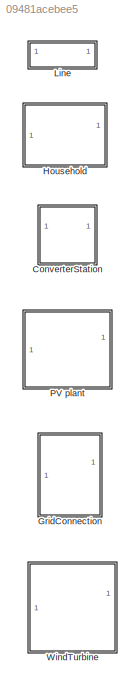
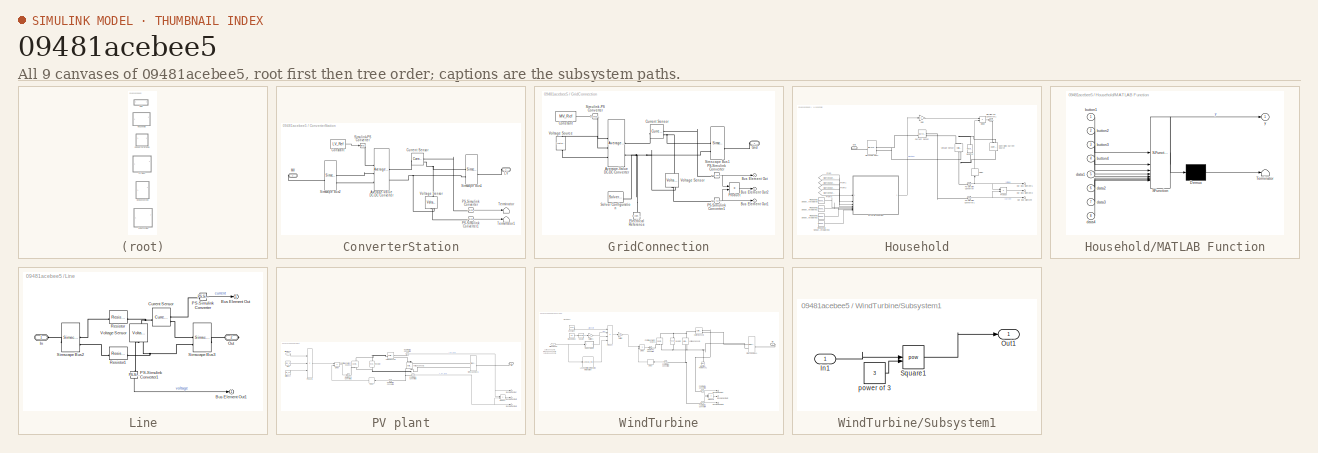
[diagram: thumbnail index - all 9 canvases of the model, root first then tree order]
MODEL slx_09481acebee5
KIND library
CONFIG AbsTol = auto
CONFIG EnableMultiTasking = off
CONFIG FixedStep = auto
CONFIG MaxStep = auto
CONFIG MinStep = auto
CONFIG RelTol = 1e-3
CONFIG SampleTimeConstraint = Unconstrained
CONFIG SolverName = VariableStepAuto
CONFIG StartTime = 0.0
CONFIG StopTime = 10.0
BLOCK [SubSystem] ConverterStation
BLOCK [Reference] ConverterStation/Average-Value DC-DC Converter  REF=ee_lib/Semiconductors &
Converters/Converters/Average-Value DC-DC
Converter
  SourceBlock = ee_lib/Semiconductors &\nConverters/Converters/Average-Value DC-DC\nConverter
  SourceType = Average-Value DC-DC\nConverter
BLOCK [Constant] ConverterStation/Constant
  Value = LV_Ref
BLOCK [Reference] ConverterStation/Current Sensor  REF=fl_lib/Electrical/Electrical Sensors/Current Sensor
  SourceBlock = fl_lib/Electrical/Electrical Sensors/Current Sensor
  SourceType = Current Sensor
BLOCK [PMIOPort] ConverterStation/LV
  NameLocation = top
  Side = Left
BLOCK [PMIOPort] ConverterStation/MV
  Port = 2
  Side = Right
BLOCK [Reference] ConverterStation/PS-Simulink Converter  REF=nesl_utility/PS-Simulink
Converter
  SourceBlock = nesl_utility/PS-Simulink\nConverter
  SourceType = PS-Simulink\nConverter
BLOCK [Reference] ConverterStation/PS-Simulink Converter1  REF=nesl_utility/PS-Simulink
Converter
  SourceBlock = nesl_utility/PS-Simulink\nConverter
  SourceType = PS-Simulink\nConverter
BLOCK [SimscapeBus] ConverterStation/Simscape Bus1
  HierarchyStrings = High;Low
BLOCK [SimscapeBus] ConverterStation/Simscape Bus2
  HierarchyStrings = High;Low
  NameLocation = top
BLOCK [Reference] ConverterStation/Simulink-PS Converter  REF=nesl_utility/Simulink-PS
Converter
  SourceBlock = nesl_utility/Simulink-PS\nConverter
  SourceType = Simulink-PS\nConverter
BLOCK [Terminator] ConverterStation/Terminator
BLOCK [Terminator] ConverterStation/Terminator1
BLOCK [Reference] ConverterStation/Voltage Sensor  REF=fl_lib/Electrical/Electrical Sensors/Voltage Sensor
  NameLocation = right
  SourceBlock = fl_lib/Electrical/Electrical Sensors/Voltage Sensor
  SourceType = Voltage Sensor
BLOCK [SubSystem] GridConnection
BLOCK [Reference] GridConnection/Average-Value DC-DC Converter  REF=ee_lib/Semiconductors &
Converters/Converters/Average-Value DC-DC
Converter
  SourceBlock = ee_lib/Semiconductors &\nConverters/Converters/Average-Value DC-DC\nConverter
  SourceType = Average-Value DC-DC\nConverter
BLOCK [Outport] GridConnection/Bus Element Out
BLOCK [Outport] GridConnection/Bus Element Out1
BLOCK [Outport] GridConnection/Bus Element Out2
BLOCK [Constant] GridConnection/Constant
  Value = MV_Ref
BLOCK [Reference] GridConnection/Current Sensor  REF=fl_lib/Electrical/Electrical Sensors/Current Sensor
  SourceBlock = fl_lib/Electrical/Electrical Sensors/Current Sensor
  SourceType = Current Sensor
BLOCK [Reference] GridConnection/Electrical Reference  REF=fl_lib/Electrical/Electrical Elements/Electrical Reference
  NameLocation = right
  SourceBlock = fl_lib/Electrical/Electrical Elements/Electrical Reference
  SourceType = Electrical Reference
BLOCK [PMIOPort] GridConnection/Grid
  NameLocation = top
  Side = Left
BLOCK [Reference] GridConnection/PS-Simulink Converter  REF=nesl_utility/PS-Simulink
Converter
  SourceBlock = nesl_utility/PS-Simulink\nConverter
  SourceType = PS-Simulink\nConverter
BLOCK [Reference] GridConnection/PS-Simulink Converter1  REF=nesl_utility/PS-Simulink
Converter
  SourceBlock = nesl_utility/PS-Simulink\nConverter
  SourceType = PS-Simulink\nConverter
BLOCK [Product] GridConnection/Product
BLOCK [SimscapeBus] GridConnection/Simscape Bus1
  HierarchyStrings = High;Low
BLOCK [Reference] GridConnection/Simulink-PS Converter  REF=nesl_utility/Simulink-PS
Converter
  SourceBlock = nesl_utility/Simulink-PS\nConverter
  SourceType = Simulink-PS\nConverter
BLOCK [Reference] GridConnection/Solver Configuration  REF=nesl_utility/Solver
Configuration
  SourceBlock = nesl_utility/Solver\nConfiguration
  SourceType = Solver\nConfiguration
BLOCK [Reference] GridConnection/Voltage Sensor  REF=fl_lib/Electrical/Electrical Sensors/Voltage Sensor
  NameLocation = right
  SourceBlock = fl_lib/Electrical/Electrical Sensors/Voltage Sensor
  SourceType = Voltage Sensor
BLOCK [Reference] GridConnection/Voltage Source  REF=ee_lib/Sources/Voltage Source
  NameLocation = right
  SourceBlock = ee_lib/Sources/Voltage Source
  SourceType = Voltage Source
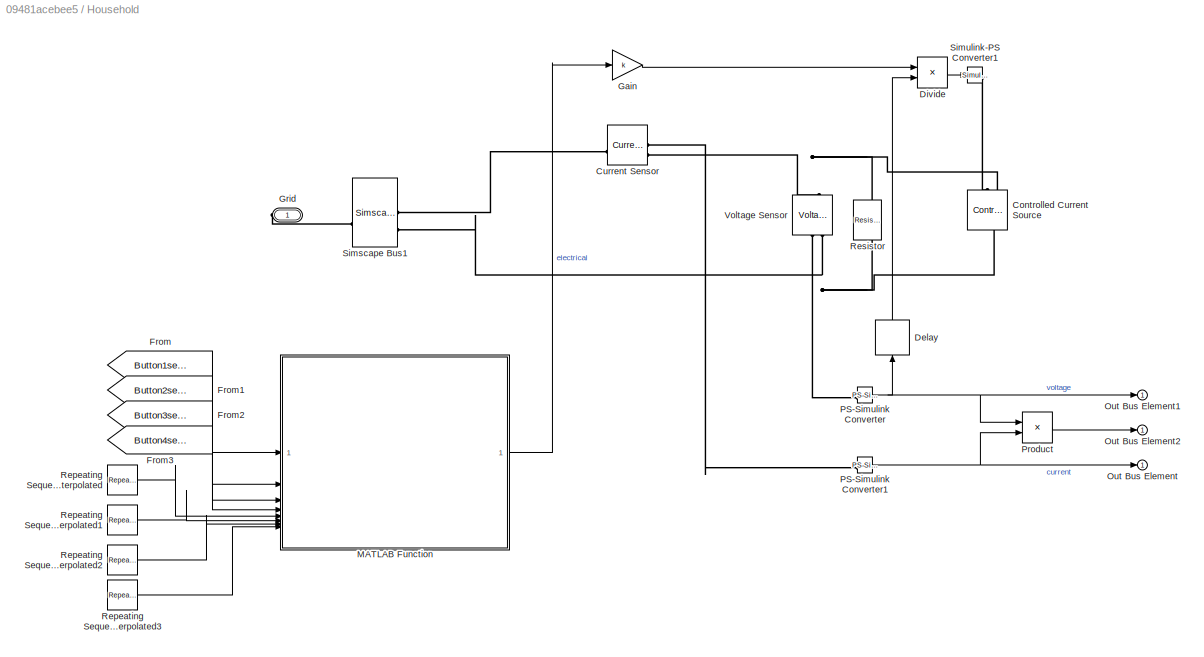
BLOCK [SubSystem] Household
BLOCK [Reference] Household/Controlled Current Source  REF=fl_lib/Electrical/Electrical Sources/Controlled Current
Source
  NameLocation = left
  SourceBlock = fl_lib/Electrical/Electrical Sources/Controlled Current\nSource
  SourceType = Controlled Current\nSource
BLOCK [Reference] Household/Current Sensor  REF=fl_lib/Electrical/Electrical Sensors/Current Sensor
  SourceBlock = fl_lib/Electrical/Electrical Sensors/Current Sensor
  SourceType = Current Sensor
BLOCK [Delay] Household/Delay
  DelayLength = 1
  InitialCondition = VnomLoad
  InputPortMap = u0
  NameLocation = right
BLOCK [Product] Household/Divide
  Inputs = */
BLOCK [From] Household/From
  GotoTag = Button1selected
  TagVisibility = global
BLOCK [From] Household/From1
  GotoTag = Button2selected
  TagVisibility = global
BLOCK [From] Household/From2
  GotoTag = Button3selected
  TagVisibility = global
BLOCK [From] Household/From3
  GotoTag = Button4selected
  TagVisibility = global
BLOCK [Gain] Household/Gain
  Gain = k
BLOCK [PMIOPort] Household/Grid
  Side = Right
BLOCK [SubSystem] Household/MATLAB Function
  ErrorFcn = Stateflow.Translate.translate
  LibrarySourceBlock = simulink/User-Defined\nFunctions/MATLAB Function
  PermitHierarchicalResolution = ExplicitOnly
  SFBlockType = MATLAB Function
  TreatAsAtomicUnit = on
BLOCK [Demux] Household/MATLAB Function/ Demux 
  Outputs = 1
BLOCK [S-Function] Household/MATLAB Function/ SFunction 
  EnableBusSupport = on
  FunctionName = sf_sfun
  PortCounts = [8 2]
  SFcnIsStateOwnerBlock = off
  SFunctionDeploymentMode = off
  Tag = Stateflow S-Function 15
BLOCK [Terminator] Household/MATLAB Function/ Terminator 
BLOCK [Inport] Household/MATLAB Function/button1
BLOCK [Inport] Household/MATLAB Function/button2
  Port = 2
BLOCK [Inport] Household/MATLAB Function/button3
  Port = 3
BLOCK [Inport] Household/MATLAB Function/button4
  Port = 4
BLOCK [Inport] Household/MATLAB Function/data1
  Port = 5
BLOCK [Inport] Household/MATLAB Function/data2
  Port = 6
BLOCK [Inport] Household/MATLAB Function/data3
  Port = 7
BLOCK [Inport] Household/MATLAB Function/data4
  Port = 8
BLOCK [Outport] Household/MATLAB Function/y
BLOCK [Outport] Household/Out Bus Element
BLOCK [Outport] Household/Out Bus Element1
BLOCK [Outport] Household/Out Bus Element2
BLOCK [Reference] Household/PS-Simulink Converter  REF=nesl_utility/PS-Simulink
Converter
  SourceBlock = nesl_utility/PS-Simulink\nConverter
  SourceType = PS-Simulink\nConverter
BLOCK [Reference] Household/PS-Simulink Converter1  REF=nesl_utility/PS-Simulink
Converter
  SourceBlock = nesl_utility/PS-Simulink\nConverter
  SourceType = PS-Simulink\nConverter
BLOCK [Product] Household/Product
BLOCK [Reference] Household/Repeating Sequence Interpolated  REF=simulink/Sources/Repeating
Sequence
Interpolated
  SourceBlock = simulink/Sources/Repeating\nSequence\nInterpolated
  SourceType = Repeating Sequence Interpolated
BLOCK [Reference] Household/Repeating Sequence Interpolated1  REF=simulink/Sources/Repeating
Sequence
Interpolated
  SourceBlock = simulink/Sources/Repeating\nSequence\nInterpolated
  SourceType = Repeating Sequence Interpolated
BLOCK [Reference] Household/Repeating Sequence Interpolated2  REF=simulink/Sources/Repeating
Sequence
Interpolated
  SourceBlock = simulink/Sources/Repeating\nSequence\nInterpolated
  SourceType = Repeating Sequence Interpolated
BLOCK [Reference] Household/Repeating Sequence Interpolated3  REF=simulink/Sources/Repeating
Sequence
Interpolated
  SourceBlock = simulink/Sources/Repeating\nSequence\nInterpolated
  SourceType = Repeating Sequence Interpolated
BLOCK [Reference] Household/Resistor  REF=fl_lib/Electrical/Electrical Elements/Resistor
  NameLocation = left
  SourceBlock = fl_lib/Electrical/Electrical Elements/Resistor
  SourceType = Resistor
BLOCK [SimscapeBus] Household/Simscape Bus1
  HierarchyStrings = High;Low
  NameLocation = top
BLOCK [Reference] Household/Simulink-PS Converter1  REF=nesl_utility/Simulink-PS
Converter
  SourceBlock = nesl_utility/Simulink-PS\nConverter
  SourceType = Simulink-PS\nConverter
BLOCK [Reference] Household/Voltage Sensor  REF=fl_lib/Electrical/Electrical Sensors/Voltage Sensor
  NameLocation = right
  SourceBlock = fl_lib/Electrical/Electrical Sensors/Voltage Sensor
  SourceType = Voltage Sensor
BLOCK [SubSystem] Line
BLOCK [Outport] Line/Bus Element Out
BLOCK [Outport] Line/Bus Element Out1
BLOCK [Reference] Line/Current Sensor  REF=fl_lib/Electrical/Electrical Sensors/Current Sensor
  SourceBlock = fl_lib/Electrical/Electrical Sensors/Current Sensor
  SourceType = Current Sensor
BLOCK [PMIOPort] Line/In
  Side = Left
BLOCK [PMIOPort] Line/Out
  Port = 2
  Side = Right
BLOCK [Reference] Line/PS-Simulink Converter  REF=nesl_utility/PS-Simulink
Converter
  SourceBlock = nesl_utility/PS-Simulink\nConverter
  SourceType = PS-Simulink\nConverter
BLOCK [Reference] Line/PS-Simulink Converter1  REF=nesl_utility/PS-Simulink
Converter
  NameLocation = left
  SourceBlock = nesl_utility/PS-Simulink\nConverter
  SourceType = PS-Simulink\nConverter
BLOCK [Reference] Line/Resistor  REF=fl_lib/Electrical/Electrical Elements/Resistor
  SourceBlock = fl_lib/Electrical/Electrical Elements/Resistor
  SourceType = Resistor
BLOCK [Reference] Line/Resistor1  REF=fl_lib/Electrical/Electrical Elements/Resistor
  SourceBlock = fl_lib/Electrical/Electrical Elements/Resistor
  SourceType = Resistor
BLOCK [SimscapeBus] Line/Simscape Bus2
  HierarchyStrings = High;Low
  NameLocation = top
BLOCK [SimscapeBus] Line/Simscape Bus3
  HierarchyStrings = High;Low
BLOCK [Reference] Line/Voltage Sensor  REF=fl_lib/Electrical/Electrical Sensors/Voltage Sensor
  NameLocation = right
  SourceBlock = fl_lib/Electrical/Electrical Sensors/Voltage Sensor
  SourceType = Voltage Sensor
BLOCK [SubSystem] PV plant
  PortSchema = {"entries":[{"content":{"sides":[{"content":{"connectorIds":["LConn1"]},"type":"ConnectorPlacement.EquallySpacedRectSide","uuid":"e7d30e91-d877-4849-85d5-5068117b5a73"},{"content":{"connectorIds":["In1","Out1"],"side":"RIGHT"},"type":"ConnectorPlacement.EquallySpacedRectSide","uuid":"aff2ec47-1e97-401e-aec0-02d86814fbc3"},{"content":{"connectorIds":[],"side":"TOP"},"type":"ConnectorPlacement.Equal...<+249ch>
BLOCK [Constant] PV plant/Area
  Value = area_pv
BLOCK [Outport] PV plant/Bus Element Out
BLOCK [Outport] PV plant/Bus Element Out1
BLOCK [Outport] PV plant/Bus Element Out2
BLOCK [Reference] PV plant/Controlled Current Source1  REF=fl_lib/Electrical/Electrical Sources/Controlled Current
Source
  NameLocation = right
  SourceBlock = fl_lib/Electrical/Electrical Sources/Controlled Current\nSource
  SourceType = Controlled Current\nSource
BLOCK [Reference] PV plant/Current Sensor1  REF=fl_lib/Electrical/Electrical Sensors/Current Sensor
  SourceBlock = fl_lib/Electrical/Electrical Sensors/Current Sensor
  SourceType = Current Sensor
BLOCK [Delay] PV plant/Delay
  DelayLength = 1
  InitialCondition = MV
  InputPortMap = u0
  NameLocation = top
BLOCK [Product] PV plant/Divide
  Inputs = */
BLOCK [Constant] PV plant/Efficiency
  Value = eta_pv
BLOCK [PMIOPort] PV plant/Grid
  NameLocation = top
  Side = Left
BLOCK [Inport] PV plant/Irradiance
BLOCK [Reference] PV plant/PS-Simulink Converter2  REF=nesl_utility/PS-Simulink
Converter
  SourceBlock = nesl_utility/PS-Simulink\nConverter
  SourceType = PS-Simulink\nConverter
BLOCK [Reference] PV plant/PS-Simulink Converter3  REF=nesl_utility/PS-Simulink
Converter
  SourceBlock = nesl_utility/PS-Simulink\nConverter
  SourceType = PS-Simulink\nConverter
BLOCK [Reference] PV plant/PS-Simulink Converter4  REF=nesl_utility/PS-Simulink
Converter
  NameLocation = top
  SourceBlock = nesl_utility/PS-Simulink\nConverter
  SourceType = PS-Simulink\nConverter
BLOCK [Product] PV plant/Product
BLOCK [Product] PV plant/Product1
  Inputs = 3
BLOCK [Reference] PV plant/Resistor  REF=fl_lib/Electrical/Electrical Elements/Resistor
  NameLocation = left
  SourceBlock = fl_lib/Electrical/Electrical Elements/Resistor
  SourceType = Resistor
BLOCK [SimscapeBus] PV plant/Simscape Bus1
  HierarchyStrings = High;Low
BLOCK [Reference] PV plant/Simulink-PS Converter1  REF=nesl_utility/Simulink-PS
Converter
  SourceBlock = nesl_utility/Simulink-PS\nConverter
  SourceType = Simulink-PS\nConverter
BLOCK [Reference] PV plant/Voltage Sensor1  REF=fl_lib/Electrical/Electrical Sensors/Voltage Sensor
  NameLocation = right
  SourceBlock = fl_lib/Electrical/Electrical Sensors/Voltage Sensor
  SourceType = Voltage Sensor
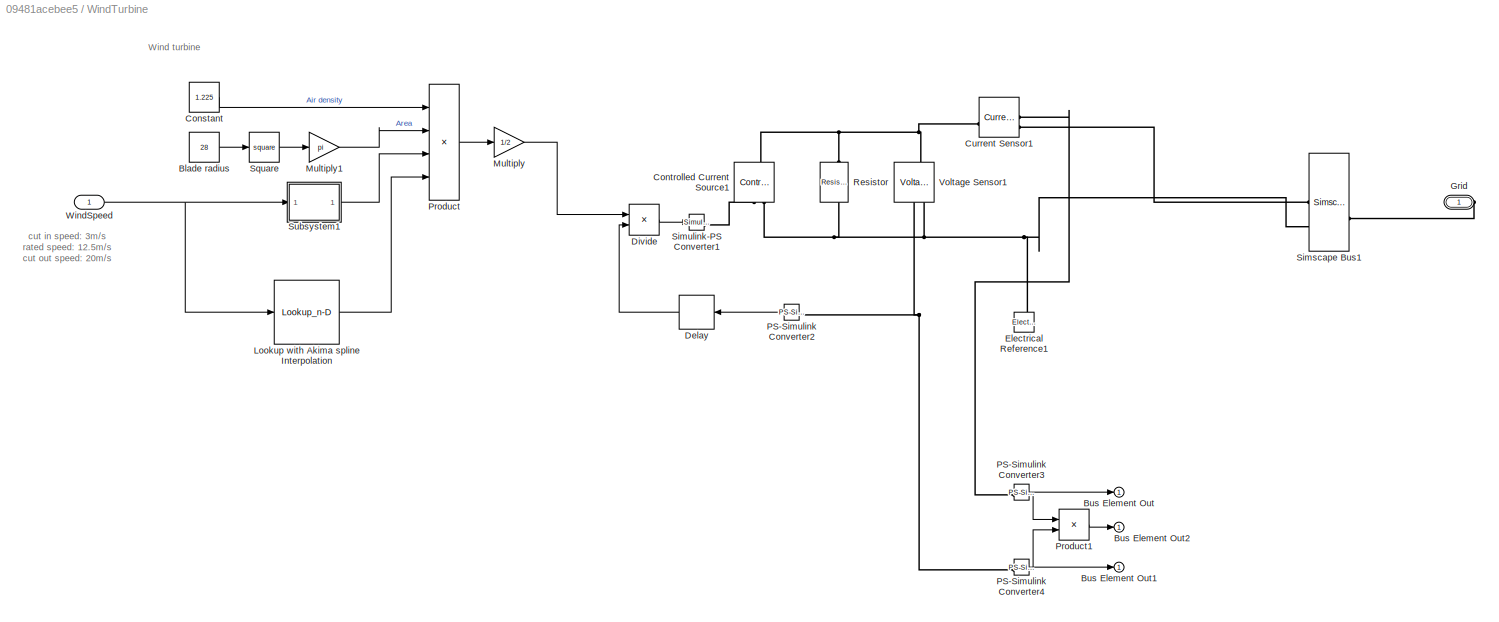
BLOCK [SubSystem] WindTurbine
BLOCK [Constant] WindTurbine/Blade radius
  Value = 28
BLOCK [Outport] WindTurbine/Bus Element Out
BLOCK [Outport] WindTurbine/Bus Element Out1
BLOCK [Outport] WindTurbine/Bus Element Out2
BLOCK [Constant] WindTurbine/Constant
  Value = 1.225
BLOCK [Reference] WindTurbine/Controlled Current Source1  REF=fl_lib/Electrical/Electrical Sources/Controlled Current
Source
  NameLocation = right
  SourceBlock = fl_lib/Electrical/Electrical Sources/Controlled Current\nSource
  SourceType = Controlled Current\nSource
BLOCK [Reference] WindTurbine/Current Sensor1  REF=fl_lib/Electrical/Electrical Sensors/Current Sensor
  SourceBlock = fl_lib/Electrical/Electrical Sensors/Current Sensor
  SourceType = Current Sensor
BLOCK [Delay] WindTurbine/Delay
  DelayLength = 1
  InitialCondition = MV
  InputPortMap = u0
  NameLocation = top
BLOCK [Product] WindTurbine/Divide
  Inputs = */
BLOCK [Reference] WindTurbine/Electrical Reference1  REF=fl_lib/Electrical/Electrical Elements/Electrical Reference
  NameLocation = right
  SourceBlock = fl_lib/Electrical/Electrical Elements/Electrical Reference
  SourceType = Electrical Reference
BLOCK [PMIOPort] WindTurbine/Grid
  Side = Right
BLOCK [Lookup_n-D] WindTurbine/Lookup with Akima spline Interpolation
  BreakpointsForDimension1 = [0;1;2;3;4;5;6;7;8;9;10;11;12;13;14;15;16;17;18;19;20;21;22;23;24;25;26;27;28]
  InputPortMap = u0
  InternalRulePriority = Speed
  InterpMethod = Akima spline
  NumberOfTableDimensions = 1
  OutDataTypeStr = double
  RndMeth = Simplest
  Table = [0;0;0;0.228;0.322;0.38;0.408;0.413;0.418;0.419;0.419;0.401;0.378;0.305;0.244;0.199;0.164;0.136;0.115;0.098;0.084;0.072;0.063;0.055;0.048;0.042;0;0;0]
BLOCK [Gain] WindTurbine/Multiply
  Gain = 1/2
BLOCK [Gain] WindTurbine/Multiply1
  Gain = pi
BLOCK [Reference] WindTurbine/PS-Simulink Converter2  REF=nesl_utility/PS-Simulink
Converter
  NameLocation = top
  SourceBlock = nesl_utility/PS-Simulink\nConverter
  SourceType = PS-Simulink\nConverter
BLOCK [Reference] WindTurbine/PS-Simulink Converter3  REF=nesl_utility/PS-Simulink
Converter
  SourceBlock = nesl_utility/PS-Simulink\nConverter
  SourceType = PS-Simulink\nConverter
BLOCK [Reference] WindTurbine/PS-Simulink Converter4  REF=nesl_utility/PS-Simulink
Converter
  SourceBlock = nesl_utility/PS-Simulink\nConverter
  SourceType = PS-Simulink\nConverter
BLOCK [Product] WindTurbine/Product
  Inputs = 4
BLOCK [Product] WindTurbine/Product1
BLOCK [Reference] WindTurbine/Resistor  REF=fl_lib/Electrical/Electrical Elements/Resistor
  NameLocation = left
  SourceBlock = fl_lib/Electrical/Electrical Elements/Resistor
  SourceType = Resistor
BLOCK [SimscapeBus] WindTurbine/Simscape Bus1
  HierarchyStrings = High;Low
BLOCK [Reference] WindTurbine/Simulink-PS Converter1  REF=nesl_utility/Simulink-PS
Converter
  SourceBlock = nesl_utility/Simulink-PS\nConverter
  SourceType = Simulink-PS\nConverter
BLOCK [Math] WindTurbine/Square
  Operator = square
BLOCK [SubSystem] WindTurbine/Subsystem1
BLOCK [Inport] WindTurbine/Subsystem1/In1
BLOCK [Outport] WindTurbine/Subsystem1/Out1
BLOCK [Math] WindTurbine/Subsystem1/Square1
  Operator = pow
BLOCK [Constant] WindTurbine/Subsystem1/power of 3
  Value = 3
BLOCK [Reference] WindTurbine/Voltage Sensor1  REF=fl_lib/Electrical/Electrical Sensors/Voltage Sensor
  NameLocation = right
  SourceBlock = fl_lib/Electrical/Electrical Sensors/Voltage Sensor
  SourceType = Voltage Sensor
BLOCK [Inport] WindTurbine/WindSpeed
ANNOTATION WindTurbine: Wind turbine
ANNOTATION WindTurbine: cut in speed: 3m/s rated speed: 12.5m/s cut out speed: 20m/s
LINE ConverterStation/Constant:1 -> ConverterStation/Simulink-PS Converter:1
LINE ConverterStation/PS-Simulink Converter1:1 -> ConverterStation/Terminator1:1
LINE ConverterStation/PS-Simulink Converter:1 -> ConverterStation/Terminator:1
LINE GridConnection/Constant:1 -> GridConnection/Simulink-PS Converter:1
NET GridConnection/PS-Simulink Converter1:1 -> GridConnection/Bus Element Out1:1, GridConnection/Product:2
NET GridConnection/PS-Simulink Converter:1 -> GridConnection/Bus Element Out:1, GridConnection/Product:1
LINE GridConnection/Product:1 -> GridConnection/Bus Element Out2:1
LINE Household/Delay:1 -> Household/Divide:2
LINE Household/Divide:1 -> Household/Simulink-PS Converter1:1
LINE Household/From1:1 -> Household/MATLAB Function:2
LINE Household/From2:1 -> Household/MATLAB Function:3
LINE Household/From3:1 -> Household/MATLAB Function:4
LINE Household/From:1 -> Household/MATLAB Function:1
LINE Household/Gain:1 -> Household/Divide:1
LINE Household/MATLAB Function:1 -> Household/Gain:1
NET Household/PS-Simulink Converter1:1 -> Household/Out Bus Element:1, Household/Product:2
NET Household/PS-Simulink Converter:1 -> Household/Delay:1, Household/Out Bus Element1:1, Household/Product:1
LINE Household/Product:1 -> Household/Out Bus Element2:1
LINE Household/Repeating Sequence Interpolated1:1 -> Household/MATLAB Function:6
LINE Household/Repeating Sequence Interpolated2:1 -> Household/MATLAB Function:7
LINE Household/Repeating Sequence Interpolated3:1 -> Household/MATLAB Function:8
LINE Household/Repeating Sequence Interpolated:1 -> Household/MATLAB Function:5
LINE Line/PS-Simulink Converter1:1 -> Line/Bus Element Out1:1
LINE Line/PS-Simulink Converter:1 -> Line/Bus Element Out:1
LINE PV plant/Area:1 -> PV plant/Product1:2
LINE PV plant/Delay:1 -> PV plant/Divide:2
LINE PV plant/Divide:1 -> PV plant/Simulink-PS Converter1:1
LINE PV plant/Efficiency:1 -> PV plant/Product1:3
LINE PV plant/Irradiance:1 -> PV plant/Product1:1
NET PV plant/PS-Simulink Converter2:1 -> PV plant/Bus Element Out:1, PV plant/Product:1
NET PV plant/PS-Simulink Converter3:1 -> PV plant/Bus Element Out1:1, PV plant/Product:2
LINE PV plant/PS-Simulink Converter4:1 -> PV plant/Delay:1
LINE PV plant/Product1:1 -> PV plant/Divide:1
LINE PV plant/Product:1 -> PV plant/Bus Element Out2:1
LINE WindTurbine/Blade radius:1 -> WindTurbine/Square:1
LINE WindTurbine/Constant:1 -> WindTurbine/Product:1
LINE WindTurbine/Delay:1 -> WindTurbine/Divide:2
LINE WindTurbine/Divide:1 -> WindTurbine/Simulink-PS Converter1:1
LINE WindTurbine/Lookup with Akima spline Interpolation:1 -> WindTurbine/Product:4
LINE WindTurbine/Multiply1:1 -> WindTurbine/Product:2
LINE WindTurbine/Multiply:1 -> WindTurbine/Divide:1
LINE WindTurbine/PS-Simulink Converter2:1 -> WindTurbine/Delay:1
NET WindTurbine/PS-Simulink Converter3:1 -> WindTurbine/Bus Element Out:1, WindTurbine/Product1:1
NET WindTurbine/PS-Simulink Converter4:1 -> WindTurbine/Bus Element Out1:1, WindTurbine/Product1:2
LINE WindTurbine/Product1:1 -> WindTurbine/Bus Element Out2:1
LINE WindTurbine/Product:1 -> WindTurbine/Multiply:1
LINE WindTurbine/Square:1 -> WindTurbine/Multiply1:1
LINE WindTurbine/Subsystem1/In1:1 -> WindTurbine/Subsystem1/Square1:1
LINE WindTurbine/Subsystem1/Square1:1 -> WindTurbine/Subsystem1/Out1:1
LINE WindTurbine/Subsystem1/power of 3:1 -> WindTurbine/Subsystem1/Square1:2
LINE WindTurbine/Subsystem1:1 -> WindTurbine/Product:3
NET WindTurbine/WindSpeed:1 -> WindTurbine/Lookup with Akima spline Interpolation:1, WindTurbine/Subsystem1:1
PLINE ConverterStation/Average-Value DC-DC Converter:LConn1 -- ConverterStation/Simulink-PS Converter:RConn1
PLINE ConverterStation/Average-Value DC-DC Converter:LConn2 -- ConverterStation/Simscape Bus2:LConn1
PLINE ConverterStation/Average-Value DC-DC Converter:LConn3 -- ConverterStation/Simscape Bus2:LConn2
PLINE ConverterStation/Average-Value DC-DC Converter:RConn1 -- ConverterStation/Current Sensor:LConn1
PNET net1: ConverterStation/Average-Value DC-DC Converter:RConn2 -- ConverterStation/Simscape Bus1:LConn2 -- ConverterStation/Voltage Sensor:RConn2
PLINE ConverterStation/Current Sensor:RConn1 -- ConverterStation/PS-Simulink Converter:LConn1
PNET net2: ConverterStation/Current Sensor:RConn2 -- ConverterStation/Simscape Bus1:LConn1 -- ConverterStation/Voltage Sensor:LConn1
PLINE ConverterStation/LV:RConn1 -- ConverterStation/Simscape Bus1:RConn1
PLINE ConverterStation/MV:RConn1 -- ConverterStation/Simscape Bus2:RConn1
PLINE ConverterStation/PS-Simulink Converter1:LConn1 -- ConverterStation/Voltage Sensor:RConn1
PLINE GridConnection/Average-Value DC-DC Converter:LConn1 -- GridConnection/Simulink-PS Converter:RConn1
PLINE GridConnection/Average-Value DC-DC Converter:LConn2 -- GridConnection/Voltage Source:LConn1
PLINE GridConnection/Average-Value DC-DC Converter:LConn3 -- GridConnection/Voltage Source:RConn1
PLINE GridConnection/Average-Value DC-DC Converter:RConn1 -- GridConnection/Current Sensor:LConn1
PNET net3: GridConnection/Average-Value DC-DC Converter:RConn2 -- GridConnection/Electrical Reference:LConn1 -- GridConnection/Simscape Bus1:LConn2 -- GridConnection/Solver Configuration:RConn1 -- GridConnection/Voltage Sensor:RConn2
PLINE GridConnection/Current Sensor:RConn1 -- GridConnection/PS-Simulink Converter:LConn1
PNET net4: GridConnection/Current Sensor:RConn2 -- GridConnection/Simscape Bus1:LConn1 -- GridConnection/Voltage Sensor:LConn1
PLINE GridConnection/Grid:RConn1 -- GridConnection/Simscape Bus1:RConn1
PLINE GridConnection/PS-Simulink Converter1:LConn1 -- GridConnection/Voltage Sensor:RConn1
PNET net5: Household/Controlled Current Source:LConn1 -- Household/Resistor:RConn1 -- Household/Simscape Bus1:LConn2 -- Household/Voltage Sensor:RConn2
PLINE Household/Controlled Current Source:RConn1 -- Household/Simulink-PS Converter1:RConn1
PNET net6: Household/Controlled Current Source:RConn2 -- Household/Current Sensor:RConn2 -- Household/Resistor:LConn1 -- Household/Voltage Sensor:LConn1
PLINE Household/Current Sensor:LConn1 -- Household/Simscape Bus1:LConn1
PLINE Household/Current Sensor:RConn1 -- Household/PS-Simulink Converter1:LConn1
PLINE Household/Grid:RConn1 -- Household/Simscape Bus1:RConn1
PLINE Household/PS-Simulink Converter:LConn1 -- Household/Voltage Sensor:RConn1
PNET net7: Line/Current Sensor:LConn1 -- Line/Resistor:RConn1 -- Line/Voltage Sensor:LConn1
PLINE Line/Current Sensor:RConn1 -- Line/PS-Simulink Converter:LConn1
PLINE Line/Current Sensor:RConn2 -- Line/Simscape Bus3:LConn1
PLINE Line/In:RConn1 -- Line/Simscape Bus2:RConn1
PLINE Line/Out:RConn1 -- Line/Simscape Bus3:RConn1
PLINE Line/PS-Simulink Converter1:LConn1 -- Line/Voltage Sensor:RConn1
PLINE Line/Resistor1:LConn1 -- Line/Simscape Bus2:LConn2
PNET net8: Line/Resistor1:RConn1 -- Line/Simscape Bus3:LConn2 -- Line/Voltage Sensor:RConn2
PLINE Line/Resistor:LConn1 -- Line/Simscape Bus2:LConn1
PNET net9: PV plant/Controlled Current Source1:LConn1 -- PV plant/Current Sensor1:LConn1 -- PV plant/Resistor:LConn1
PLINE PV plant/Controlled Current Source1:RConn1 -- PV plant/Simulink-PS Converter1:RConn1
PNET net10: PV plant/Controlled Current Source1:RConn2 -- PV plant/Resistor:RConn1 -- PV plant/Simscape Bus1:LConn2 -- PV plant/Voltage Sensor1:RConn2
PLINE PV plant/Current Sensor1:RConn1 -- PV plant/PS-Simulink Converter2:LConn1
PNET net11: PV plant/Current Sensor1:RConn2 -- PV plant/Simscape Bus1:LConn1 -- PV plant/Voltage Sensor1:LConn1
PLINE PV plant/Grid:RConn1 -- PV plant/Simscape Bus1:RConn1
PNET net12: PV plant/PS-Simulink Converter3:LConn1 -- PV plant/PS-Simulink Converter4:LConn1 -- PV plant/Voltage Sensor1:RConn1
PNET net13: WindTurbine/Controlled Current Source1:LConn1 -- WindTurbine/Current Sensor1:LConn1 -- WindTurbine/Resistor:LConn1 -- WindTurbine/Voltage Sensor1:LConn1
PLINE WindTurbine/Controlled Current Source1:RConn1 -- WindTurbine/Simulink-PS Converter1:RConn1
PNET net14: WindTurbine/Controlled Current Source1:RConn2 -- WindTurbine/Electrical Reference1:LConn1 -- WindTurbine/Resistor:RConn1 -- WindTurbine/Simscape Bus1:LConn2 -- WindTurbine/Voltage Sensor1:RConn2
PLINE WindTurbine/Current Sensor1:RConn1 -- WindTurbine/PS-Simulink Converter3:LConn1
PLINE WindTurbine/Current Sensor1:RConn2 -- WindTurbine/Simscape Bus1:LConn1
PLINE WindTurbine/Grid:RConn1 -- WindTurbine/Simscape Bus1:RConn1
PNET net15: WindTurbine/PS-Simulink Converter2:LConn1 -- WindTurbine/PS-Simulink Converter4:LConn1 -- WindTurbine/Voltage Sensor1:RConn1
note: NET lines group one-source signal fan-out (src -> all destinations, sorted); 1:1 wires keep LINE; PNET lines group multi-terminal physical nets as a canonical sorted terminal list (undirected conserving connections); 2-terminal nets keep the pairwise PLINE form
CHART Household/MATLAB Function states=1 transitions=1
  STATE_LABEL 'eML_blk_kernel()'
  STATE_LABEL 'SCRIPT:\nfunction y = fcn(button1, button2, button3, button4, data1,data2,data3, data4)\n    if button1\n        y = data1;\n    elseif button2\n        y =data2;\n    elseif button3\n        y = data3;\n    elseif button4\n        y = data4;\n    else \n        y = data1;\n    end\nend\n\n'
CHART  states=0 transitions=0
